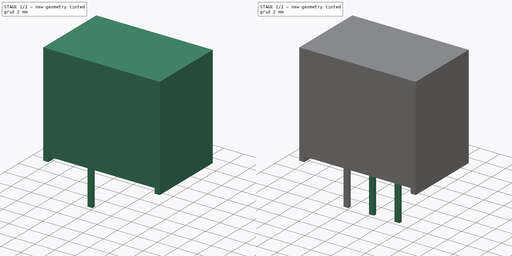
[diagram: build sequence overview — one tinted view per stage of 2, left to right]
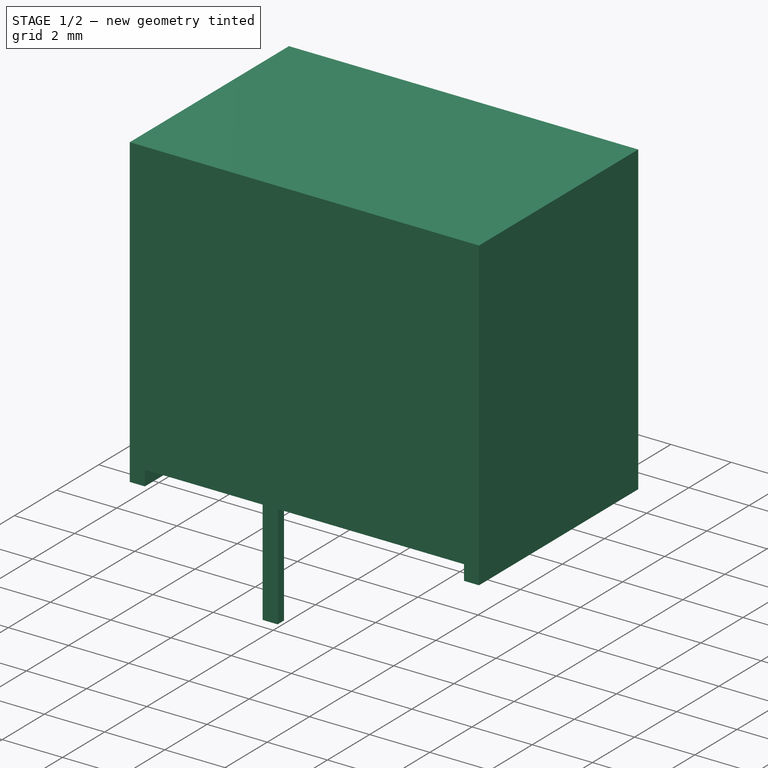
[diagram: stage 1 of 2 — iso view after this stage's code; geometry added in this stage tinted green]
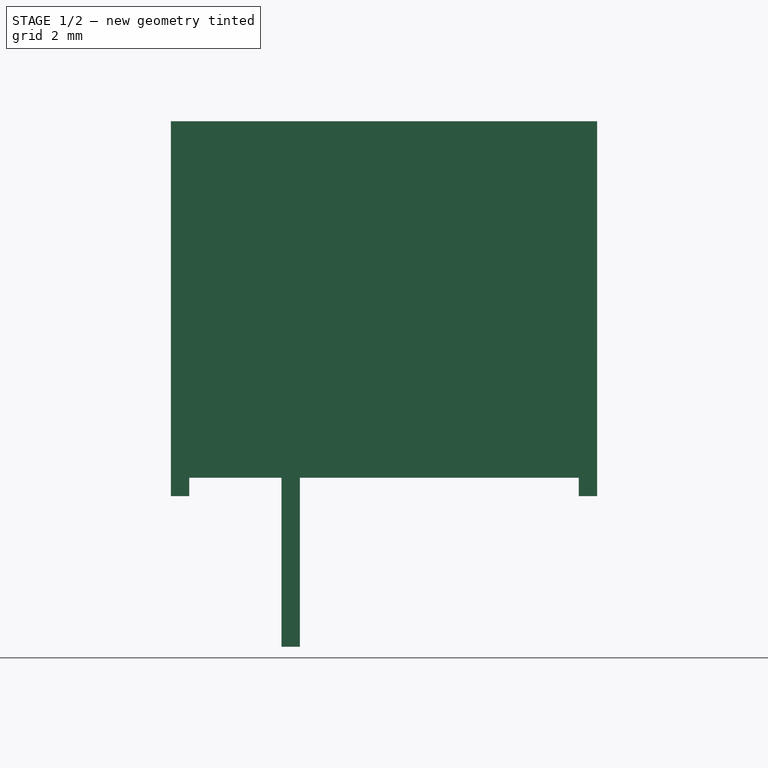
[diagram: stage 1 of 2 — front view after this stage's code; geometry added in this stage tinted green]
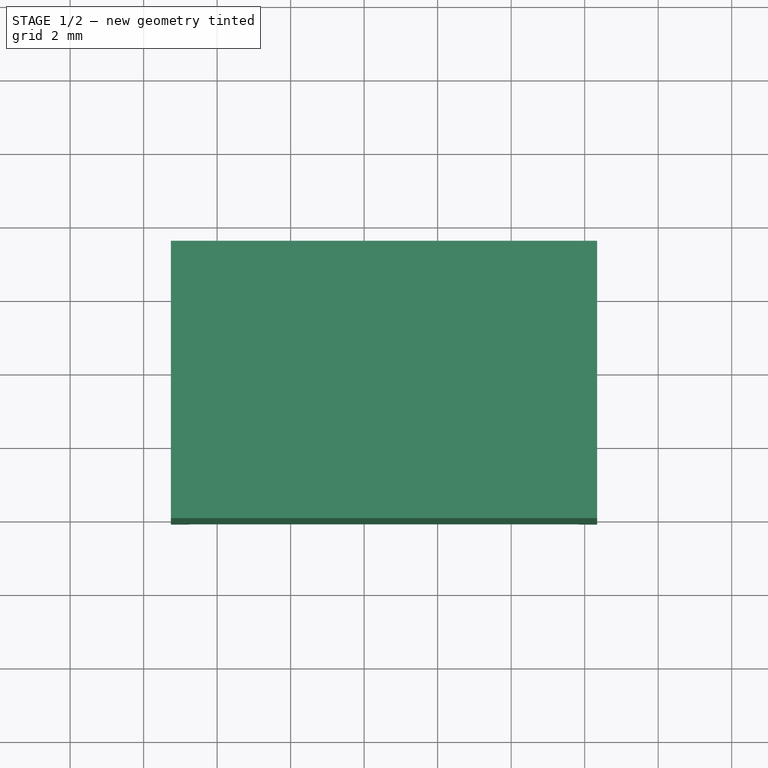
[diagram: stage 1 of 2 — top view after this stage's code; geometry added in this stage tinted green]
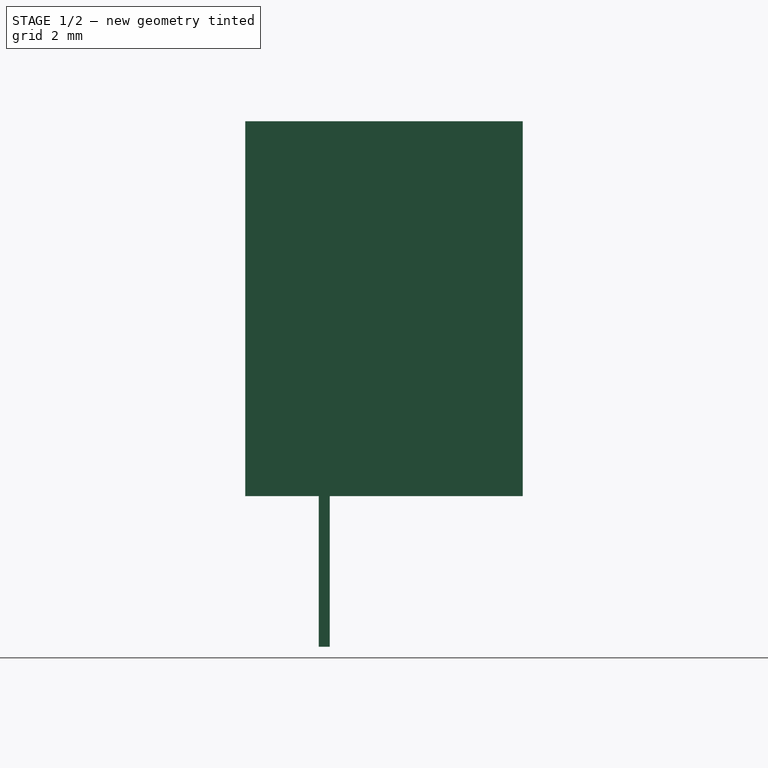
[diagram: stage 1 of 2 — right view after this stage's code; geometry added in this stage tinted green]
FCSTD DOCUMENT  (FreeCAD 0.21R33771 (Git))
Label: WE MagI3C 17395xx36
License: All rights reserved
LicenseURL: http://en.wikipedia.org/wiki/All_rights_reserved
objects: Sketcher::SketchObject×2, PartDesign::Pad×2, PartDesign::LinearPattern×1, PartDesign::Body×1
note: 8 computed .brp shape members not serialized (recipe doc carries the construction recipe); baked Part::Feature solids carry a one-line shape summary decoded from their .brp

FEATURE [Sketcher::SketchObject] Sketch
  FullyConstrained = true
  MapMode = 5
  Placement = pos=(0,0,0) rot=(1,0,0;1.5708rad)
  Support = -> [XZ_Plane]
  sketch-geometry (9):
    g0: LineSegment StartX=-2.76 StartY=0.5 StartZ=0 EndX=7.84 EndY=0.5 EndZ=0
    g1: LineSegment StartX=7.84 StartY=0.5 StartZ=0 EndX=7.84 EndY=0 EndZ=0
    g2: LineSegment StartX=7.84 StartY=0 StartZ=0 EndX=8.34 EndY=0 EndZ=0
    g3: LineSegment StartX=8.34 StartY=0 StartZ=0 EndX=8.34 EndY=10.2 EndZ=0
    g4: LineSegment StartX=8.34 StartY=10.2 StartZ=0 EndX=-3.26 EndY=10.2 EndZ=0
    g5: LineSegment StartX=-3.26 StartY=10.2 StartZ=0 EndX=-3.26 EndY=0 EndZ=0
    g6: LineSegment StartX=-3.26 StartY=0 StartZ=0 EndX=-2.76 EndY=0 EndZ=0
    g7: LineSegment StartX=-2.76 StartY=0 StartZ=0 EndX=-2.76 EndY=0.5 EndZ=0
    g8: GeomPoint X=2.54 Y=0.5 Z=0
  constraints (25):
    c: Coincident(g0,g1)
    c: Vertical(g1)
    c: Coincident(g1,g2)
    c: Coincident(g2,g3)
    c: Vertical(g3)
    c: Coincident(g3,g4)
    c: Coincident(g4,g5)
    c: Vertical(g5)
    c: Coincident(g5,g6)
    c: Horizontal(g6)
    c: Coincident(g6,g7)
    c: Coincident(g7,g0)
    c: Vertical(g7)
    c: DistanceX(g6,g6) = 0.5
    c: Horizontal(g2)
    c: Horizontal(g6,g1)
    c: Equal(g6,g2)
    c: DistanceY(g5,g5) = 10.2
    c: DistanceX(g4,g4) = 11.6
    c: Horizontal(g0)
    c: PointOnObject(g6,g-1)
    c: DistanceY(g7,g7) = 0.5
    c: Symmetric(g0,g0,g8)
    c: DistanceX(g-1,g8) = 2.54
    c: Horizontal(g4)
FEATURE [PartDesign::Pad] Pad
  Direction = (0,-1,2e-16)
  Length = 2.15
  Length2 = 5.4
  Placement = pos=(0,0,0) rot=(1,0,0;1.5708rad)
  Profile = -> Sketch
  ReferenceAxis = -> Sketch [N_Axis]
  Type = 4
  expr: Length2 = 7.55 - 2.15
FEATURE [Sketcher::SketchObject] Sketch001
  FullyConstrained = true
  MapMode = 5
  Support = -> [XY_Plane]
  sketch-geometry (4):
    g0: LineSegment StartX=-0.25 StartY=-0.15 StartZ=0 EndX=0.25 EndY=-0.15 EndZ=0
    g1: LineSegment StartX=0.25 StartY=-0.15 StartZ=0 EndX=0.25 EndY=0.15 EndZ=0
    g2: LineSegment StartX=0.25 StartY=0.15 StartZ=0 EndX=-0.25 EndY=0.15 EndZ=0
    g3: LineSegment StartX=-0.25 StartY=0.15 StartZ=0 EndX=-0.25 EndY=-0.15 EndZ=0
  constraints (10):
    c: Coincident(g0,g1)
    c: Coincident(g1,g2)
    c: Coincident(g2,g3)
    c: Coincident(g3,g0)
    c: Horizontal(g2)
    c: Vertical(g3)
    c: DistanceX(g0,g0) = 0.5
    c: DistanceY(g1,g1) = 0.3
    c: Symmetric(g0,g0,g-2)
    c: Symmetric(g0,g1,g-1)
FEATURE [PartDesign::Pad] Pad001
  BaseFeature = -> Pad
  Direction = (0,0,1)
  Length = 0.6
  Length2 = 4.1
  Placement = pos=(0,0,0) rot=(1,0,0;1.5708rad)
  Profile = -> Sketch001
  ReferenceAxis = -> Sketch001 [N_Axis]
  Type = 4
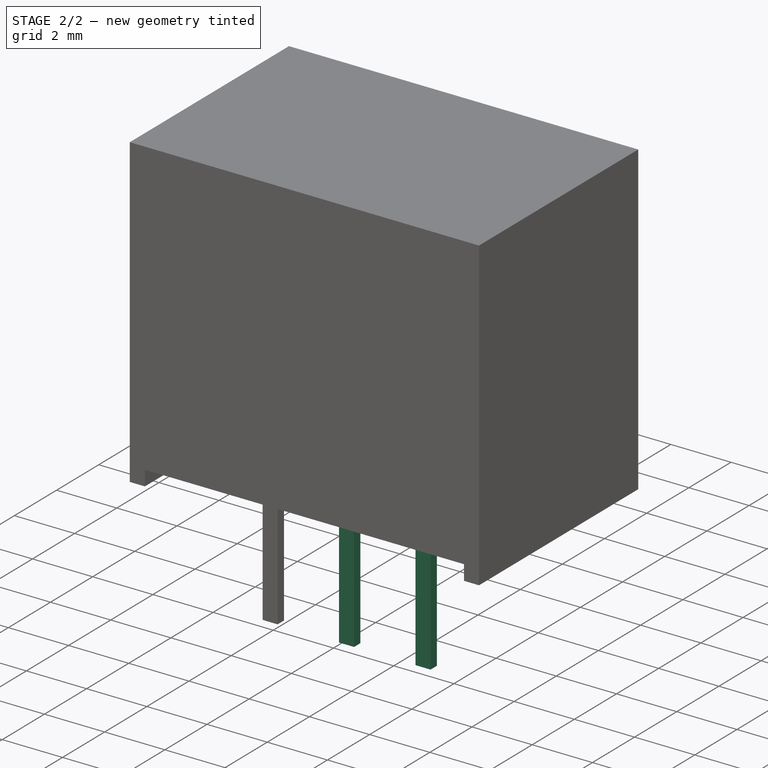
[diagram: stage 2 of 2 — iso view after this stage's code; geometry added in this stage tinted green]
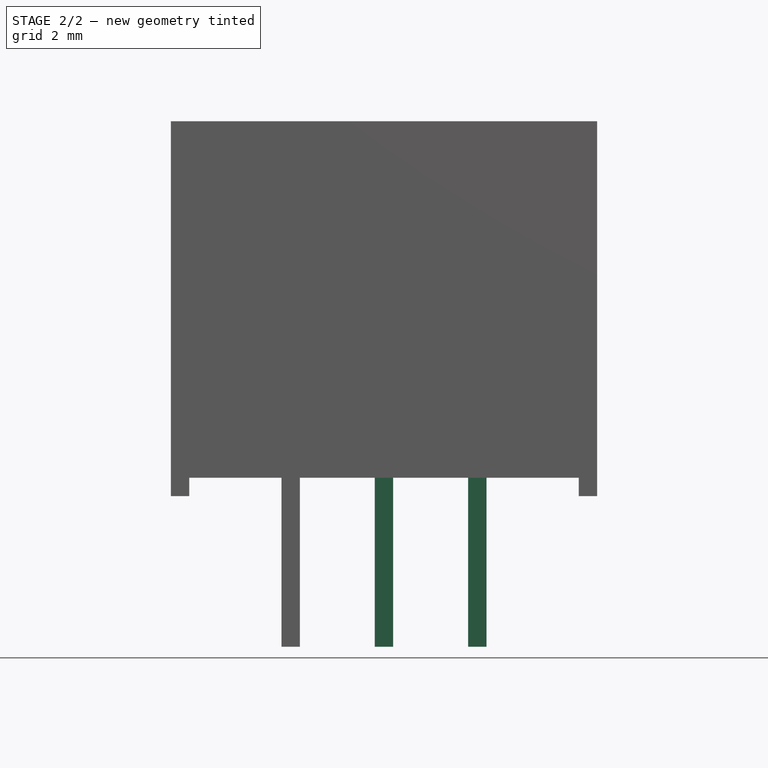
[diagram: stage 2 of 2 — front view after this stage's code; geometry added in this stage tinted green]
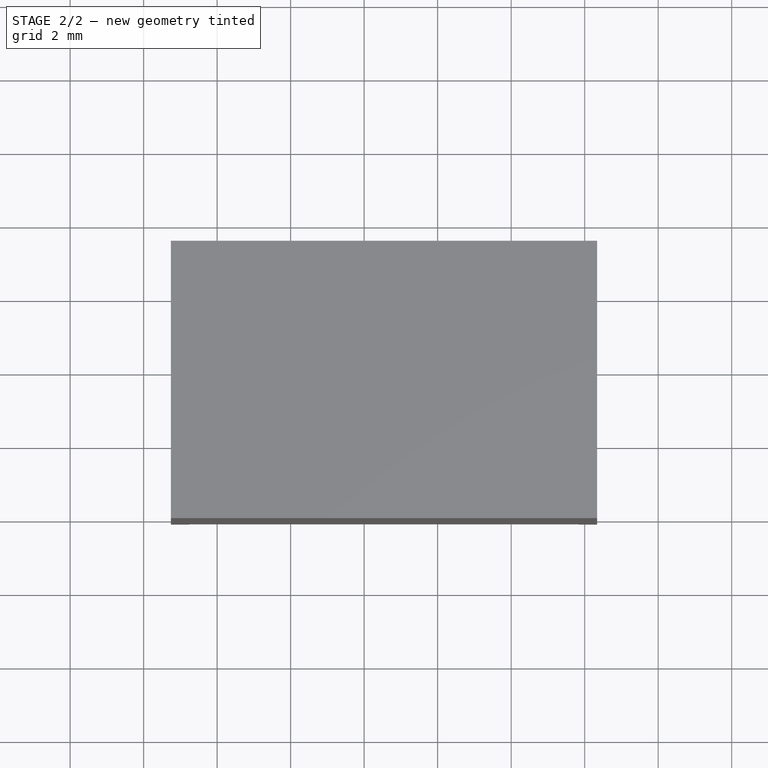
[diagram: stage 2 of 2 — top view after this stage's code; geometry added in this stage tinted green]
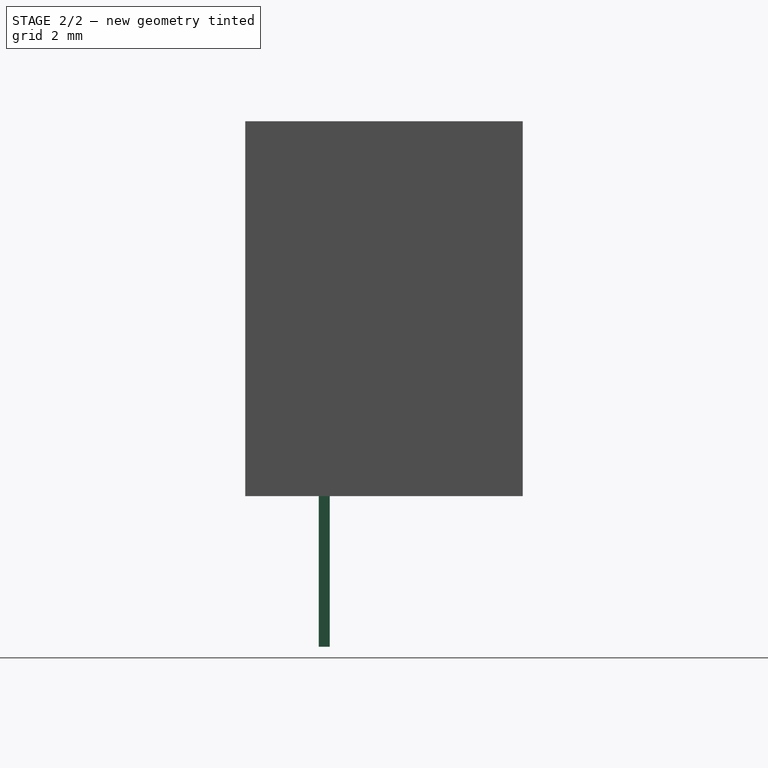
[diagram: stage 2 of 2 — right view after this stage's code; geometry added in this stage tinted green]
FEATURE [PartDesign::LinearPattern] LinearPattern
  BaseFeature = -> Pad001
  Direction = -> Sketch001 [H_Axis]
  Length = 5.08
  Occurrences = 3
  Originals = -> [Pad001]
  Placement = pos=(0,0,0) rot=(1,0,0;1.5708rad)
  expr: Length = 2 * 2.54
FEATURE [PartDesign::Body] Body
  Group = -> [Sketch,Pad,Sketch001,Pad001,LinearPattern]
  Origin = -> Origin
  Tip = -> LinearPattern
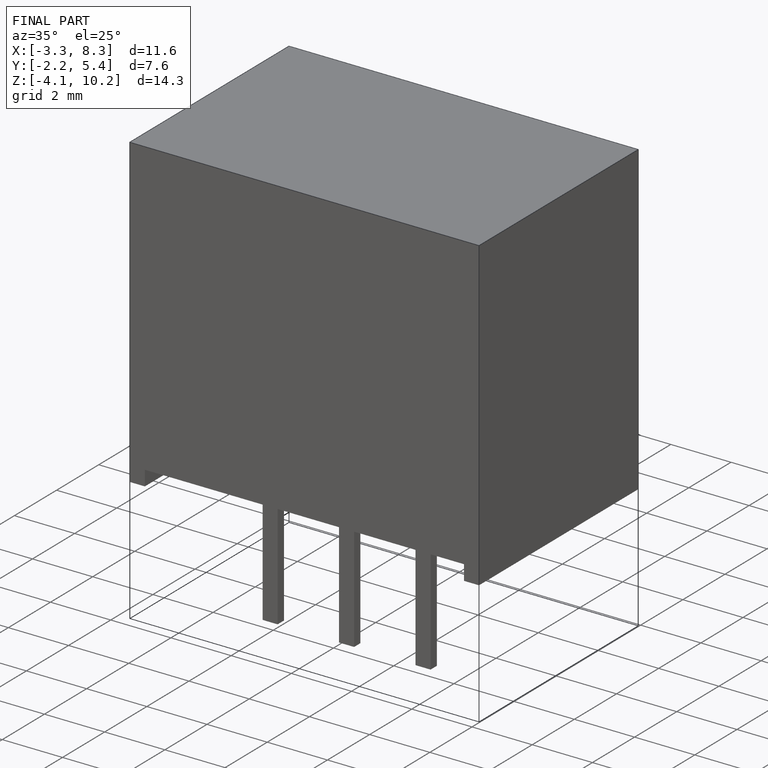
[diagram: finished part — iso view with bounding-box wireframe]
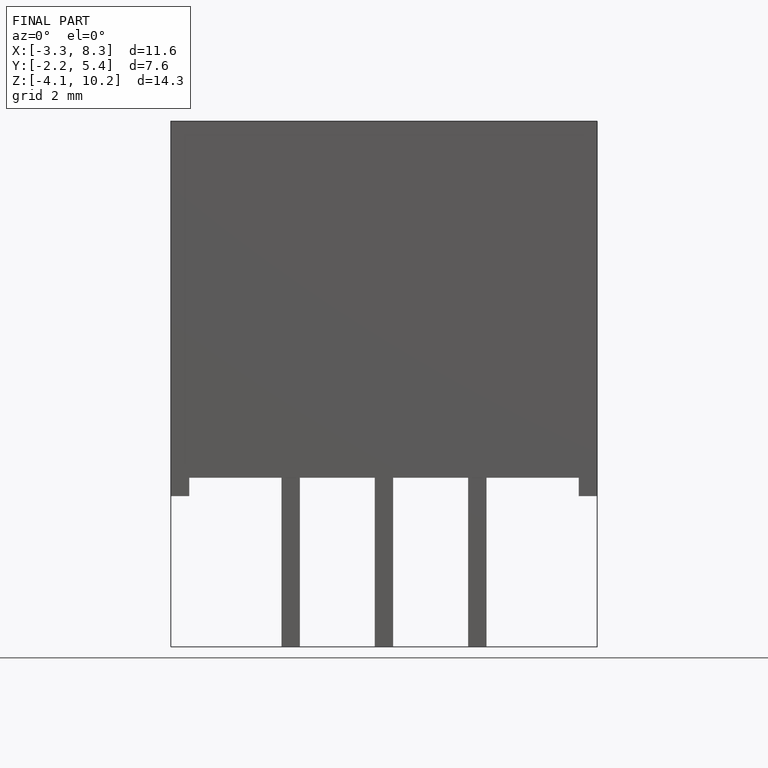
[diagram: finished part — front view with bounding-box wireframe]
